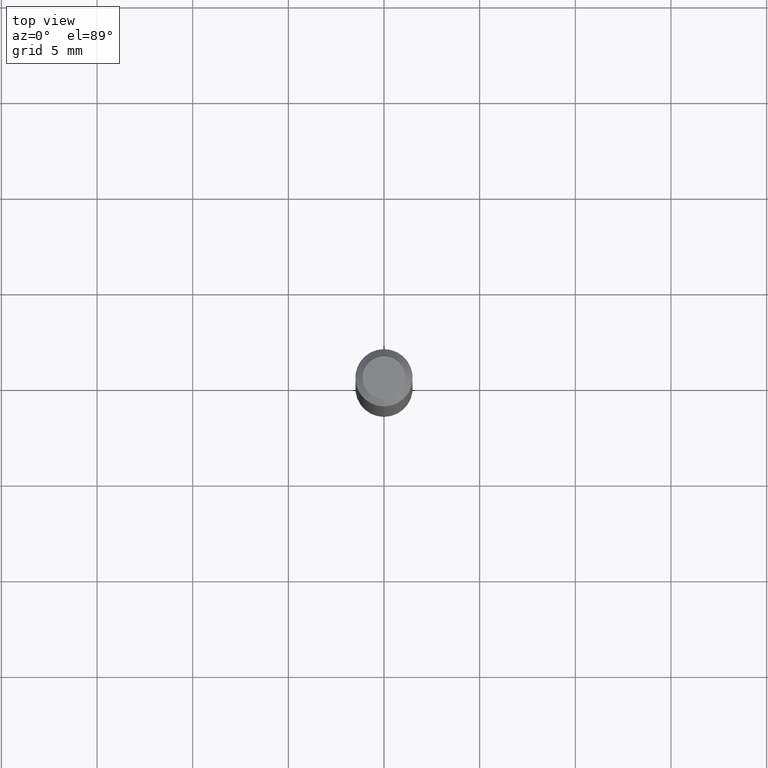
[diagram: clean part render]
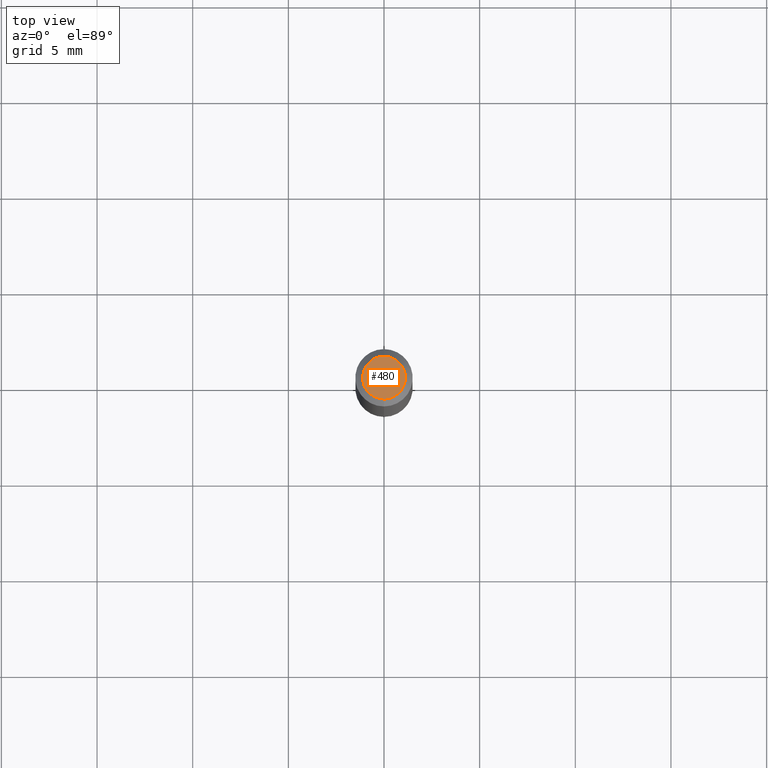
[diagram: same view with one face highlighted and labeled with its STEP entity id]
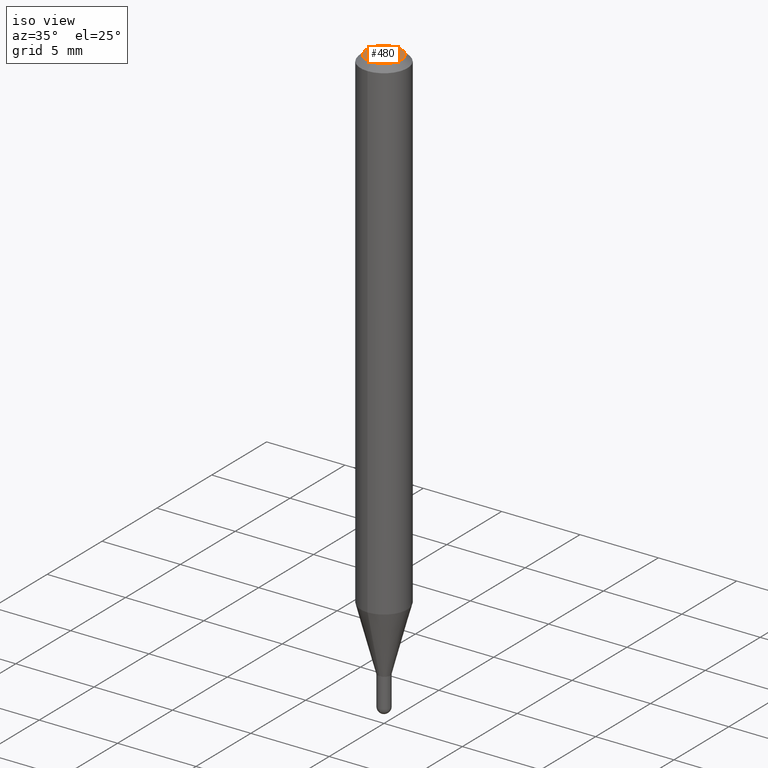
[diagram: same view with one face highlighted and labeled with its STEP entity id]
A machine part, top view. The second image highlights one B-rep face of the part: STEP entity #480.
A second angle (iso view) of the same face is appended — the face is thin or edge-on in the first view.
In plain terms, the highlighted planar face has unit normal (0, -0, -1).
Its self-contained STEP definition (entity closure, byte-faithful):
#5 = CARTESIAN_POINT ( 'NONE',  ( 1.968650324445262626E-45, -2.810715645155272139E-31, -8.050202778374932957E-17 ) ) ;
#15 = VERTEX_POINT ( 'NONE', #327 ) ;
#37 = CARTESIAN_POINT ( 'NONE',  ( 1.968650324445262626E-45, -2.810715645155272139E-31, -8.050202778374932957E-17 ) ) ;
#72 = AXIS2_PLACEMENT_3D ( 'NONE', #285, #410, #451 ) ;
#107 = CIRCLE ( 'NONE', #288, 0.04404999999999999888 ) ;
#134 = EDGE_CURVE ( 'NONE', #190, #15, #184, .T. ) ;
#151 = CARTESIAN_POINT ( 'NONE',  ( 3.599717260347271507E-16, 0.04404999999999999888, -2.343019103179918348E-16 ) ) ;
#170 = DIRECTION ( 'NONE',  ( -2.445466752382438032E-29, 3.491484280005505170E-15, 1.000000000000000000 ) ) ;
#184 = CIRCLE ( 'NONE', #457, 0.04404999999999999888 ) ;
#187 = FACE_OUTER_BOUND ( 'NONE', #203, .T. ) ;
#190 = VERTEX_POINT ( 'NONE', #151 ) ;
#203 = EDGE_LOOP ( 'NONE', ( #242, #468 ) ) ;
#242 = ORIENTED_EDGE ( 'NONE', *, *, #134, .T. ) ;
#283 = EDGE_CURVE ( 'NONE', #15, #190, #107, .T. ) ;
#285 = CARTESIAN_POINT ( 'NONE',  ( 3.075995059520799729E-16, 0.04404999999999999888, -1.940508964261171454E-16 ) ) ;
#288 = AXIS2_PLACEMENT_3D ( 'NONE', #5, #170, #357 ) ;
#327 = CARTESIAN_POINT ( 'NONE',  ( -3.536586717851222218E-16, -0.04404999999999999888, 7.329785475049316338E-17 ) ) ;
#334 = PLANE ( 'NONE',  #72 ) ;
#340 = DIRECTION ( 'NONE',  ( -2.445466752382438032E-29, 3.491484280005505170E-15, 1.000000000000000000 ) ) ;
#357 = DIRECTION ( 'NONE',  ( -6.982962677686265133E-15, -1.000000000000000000, 3.491484280005504776E-15 ) ) ;
#410 = DIRECTION ( 'NONE',  ( 2.445466752382437471E-29, -3.491484280005505565E-15, -1.000000000000000000 ) ) ;
#451 = DIRECTION ( 'NONE',  ( 6.982962677686265922E-15, 1.000000000000000000, -3.491484280005505565E-15 ) ) ;
#457 = AXIS2_PLACEMENT_3D ( 'NONE', #37, #340, #510 ) ;
#468 = ORIENTED_EDGE ( 'NONE', *, *, #283, .T. ) ;
#480 = ADVANCED_FACE ( 'NONE', ( #187 ), #334, .F. ) ;
#510 = DIRECTION ( 'NONE',  ( -6.982962677686265133E-15, -1.000000000000000000, 3.491484280005504776E-15 ) ) ;